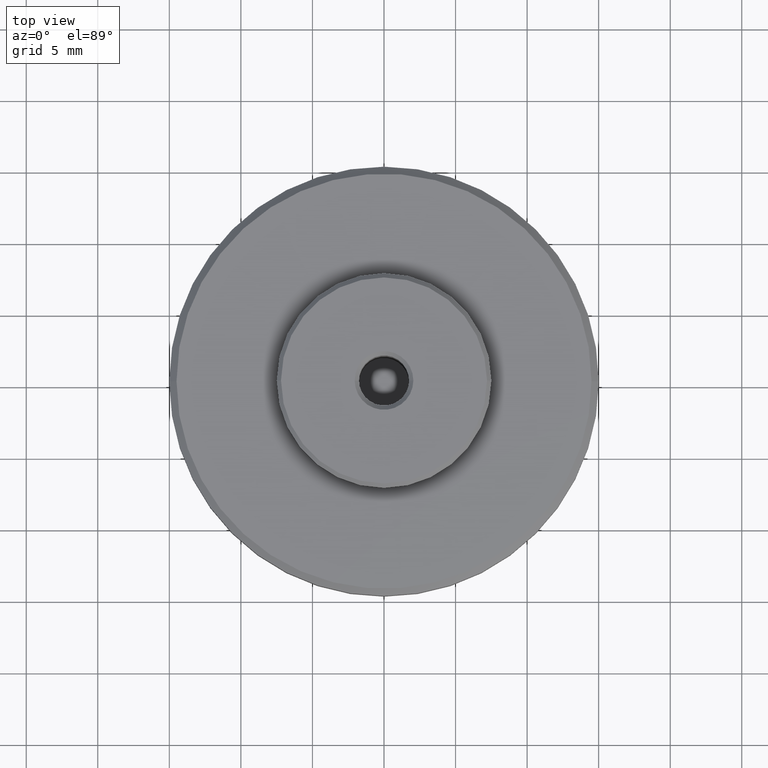
[diagram: clean part render]
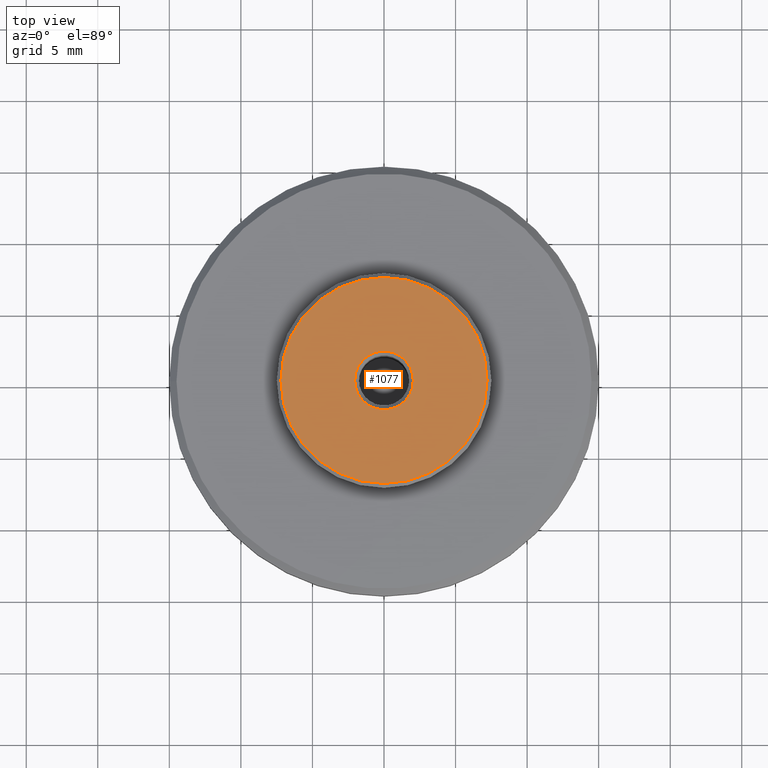
[diagram: same view with one face highlighted and labeled with its STEP entity id]
A machine part, top view. The second image highlights one B-rep face of the part: STEP entity #1077.
In plain terms, the highlighted planar face has unit normal (0, 0, -1).
Its self-contained STEP definition (entity closure, byte-faithful):
#7 = AXIS2_PLACEMENT_3D ( 'NONE', #1466, #1134, #1295 ) ;
#26 = CARTESIAN_POINT ( 'NONE',  ( 7.200000000000000200, 9.001153973733045600E-016, 15.75000000000000000 ) ) ;
#41 = CARTESIAN_POINT ( 'NONE',  ( -7.200000000000000200, 0.0000000000000000000, 15.75000000000000000 ) ) ;
#139 = EDGE_CURVE ( 'NONE', #843, #952, #1946, .T. ) ;
#153 = AXIS2_PLACEMENT_3D ( 'NONE', #1496, #1658, #1822 ) ;
#156 = CIRCLE ( 'NONE', #477, 7.200000000000000200 ) ;
#174 = CARTESIAN_POINT ( 'NONE',  ( -2.050000000000003400, 2.510525938252078100E-016, 15.75000000000000000 ) ) ;
#261 = CARTESIAN_POINT ( 'NONE',  ( 0.0000000000000000000, 0.0000000000000000000, 15.75000000000000000 ) ) ;
#362 = ORIENTED_EDGE ( 'NONE', *, *, #139, .T. ) ;
#365 = ORIENTED_EDGE ( 'NONE', *, *, #1915, .T. ) ;
#414 = CARTESIAN_POINT ( 'NONE',  ( 0.0000000000000000000, 0.0000000000000000000, 15.75000000000000000 ) ) ;
#425 = DIRECTION ( 'NONE',  ( -1.000000000000000000, 0.0000000000000000000, 0.0000000000000000000 ) ) ;
#449 = FACE_BOUND ( 'NONE', #1840, .T. ) ;
#477 = AXIS2_PLACEMENT_3D ( 'NONE', #630, #1753, #784 ) ;
#590 = DIRECTION ( 'NONE',  ( -1.000000000000000000, 0.0000000000000000000, 0.0000000000000000000 ) ) ;
#613 = CARTESIAN_POINT ( 'NONE',  ( 2.050000000000003400, 0.0000000000000000000, 15.75000000000000000 ) ) ;
#630 = CARTESIAN_POINT ( 'NONE',  ( 0.0000000000000000000, 0.0000000000000000000, 15.75000000000000000 ) ) ;
#683 = AXIS2_PLACEMENT_3D ( 'NONE', #261, #1394, #425 ) ;
#688 = EDGE_CURVE ( 'NONE', #1034, #1058, #1831, .T. ) ;
#699 = PLANE ( 'NONE',  #153 ) ;
#784 = DIRECTION ( 'NONE',  ( -1.000000000000000000, 0.0000000000000000000, 0.0000000000000000000 ) ) ;
#797 = CIRCLE ( 'NONE', #1814, 2.050000000000003400 ) ;
#843 = VERTEX_POINT ( 'NONE', #613 ) ;
#952 = VERTEX_POINT ( 'NONE', #174 ) ;
#1034 = VERTEX_POINT ( 'NONE', #26 ) ;
#1058 = VERTEX_POINT ( 'NONE', #41 ) ;
#1077 = ADVANCED_FACE ( 'NONE', ( #449, #1350 ), #699, .F. ) ;
#1134 = DIRECTION ( 'NONE',  ( 0.0000000000000000000, 0.0000000000000000000, -1.000000000000000000 ) ) ;
#1295 = DIRECTION ( 'NONE',  ( -1.000000000000000000, 0.0000000000000000000, 0.0000000000000000000 ) ) ;
#1350 = FACE_OUTER_BOUND ( 'NONE', #1754, .T. ) ;
#1394 = DIRECTION ( 'NONE',  ( -0.0000000000000000000, -0.0000000000000000000, 1.000000000000000000 ) ) ;
#1466 = CARTESIAN_POINT ( 'NONE',  ( 0.0000000000000000000, 0.0000000000000000000, 15.75000000000000000 ) ) ;
#1496 = CARTESIAN_POINT ( 'NONE',  ( 7.286400000000000400, -7.286400000000000400, 15.75000000000000000 ) ) ;
#1562 = DIRECTION ( 'NONE',  ( 0.0000000000000000000, 0.0000000000000000000, -1.000000000000000000 ) ) ;
#1658 = DIRECTION ( 'NONE',  ( 0.0000000000000000000, 0.0000000000000000000, -1.000000000000000000 ) ) ;
#1739 = EDGE_CURVE ( 'NONE', #952, #843, #797, .T. ) ;
#1753 = DIRECTION ( 'NONE',  ( -0.0000000000000000000, -0.0000000000000000000, 1.000000000000000000 ) ) ;
#1754 = EDGE_LOOP ( 'NONE', ( #365, #1791 ) ) ;
#1791 = ORIENTED_EDGE ( 'NONE', *, *, #688, .T. ) ;
#1814 = AXIS2_PLACEMENT_3D ( 'NONE', #414, #1562, #590 ) ;
#1822 = DIRECTION ( 'NONE',  ( -1.000000000000000000, 0.0000000000000000000, 0.0000000000000000000 ) ) ;
#1831 = CIRCLE ( 'NONE', #683, 7.200000000000000200 ) ;
#1840 = EDGE_LOOP ( 'NONE', ( #362, #1928 ) ) ;
#1915 = EDGE_CURVE ( 'NONE', #1058, #1034, #156, .T. ) ;
#1928 = ORIENTED_EDGE ( 'NONE', *, *, #1739, .T. ) ;
#1946 = CIRCLE ( 'NONE', #7, 2.050000000000003400 ) ;